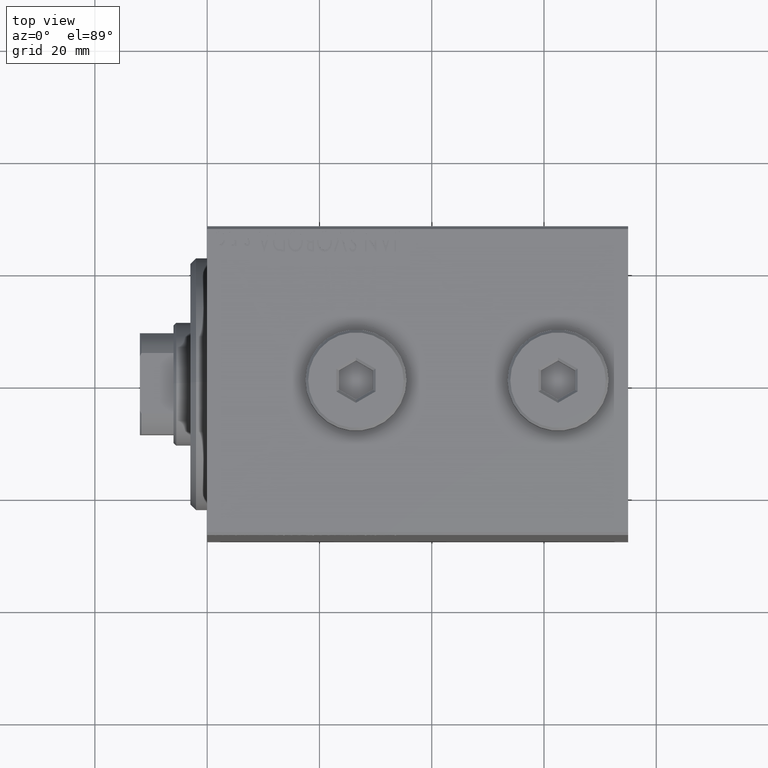
[diagram: clean part render]
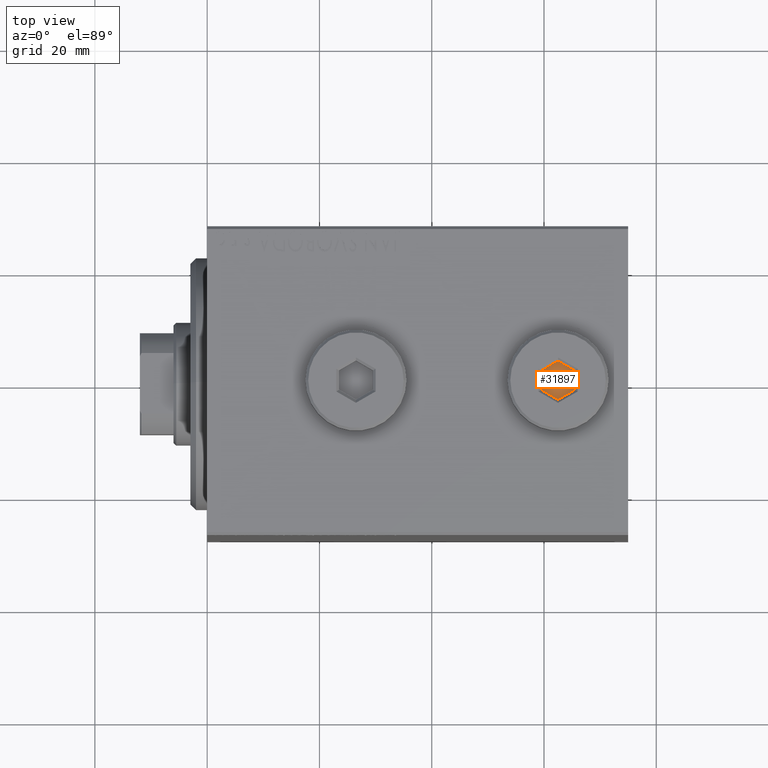
[diagram: same view with one face highlighted and labeled with its STEP entity id]
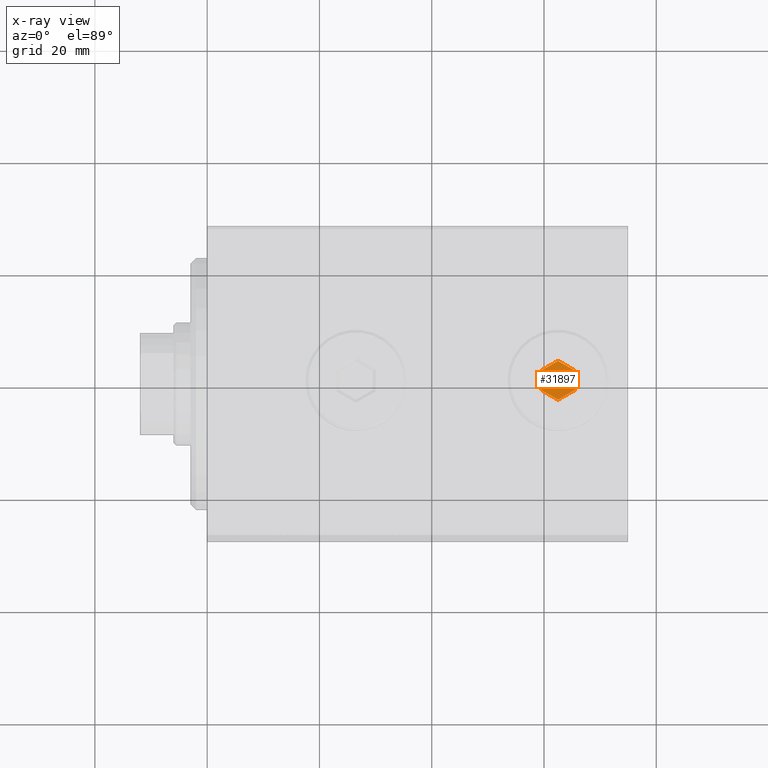
[diagram: x-ray of the same camera — body ghosted, the highlighted face saturated]
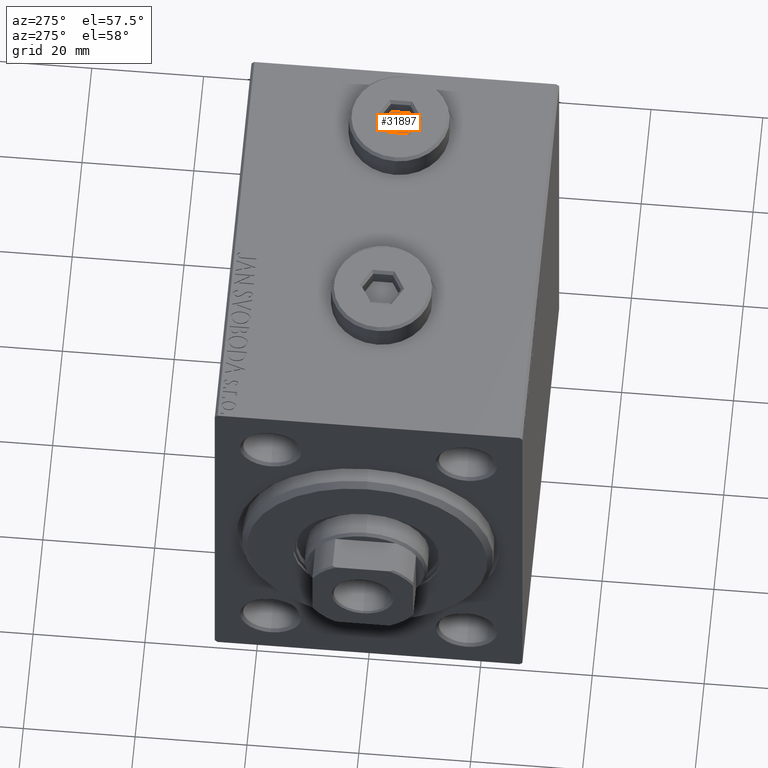
[diagram: same view with one face highlighted and labeled with its STEP entity id]
A machine part, top view. The second image highlights one B-rep face of the part: STEP entity #31897.
The next image is the same camera in x-ray: the body ghosted, the highlighted face saturated — about 0% of this face is hidden behind the body in this view.
A second angle (auxiliary view) of the same face is appended — the face is thin or edge-on in the first view.
In plain terms, the highlighted planar face has unit normal (0, 0, 1).
Its self-contained STEP definition (entity closure, byte-faithful):
#385 = LINE ( 'NONE', #24554, #24973 ) ;
#1398 = CARTESIAN_POINT ( 'NONE',  ( 3.000000000000000000, -1.732050807568878303, 2.000000000000000000 ) ) ;
#1659 = ORIENTED_EDGE ( 'NONE', *, *, #44689, .T. ) ;
#3322 = ORIENTED_EDGE ( 'NONE', *, *, #12369, .T. ) ;
#3735 = EDGE_CURVE ( 'NONE', #12724, #28302, #4068, .T. ) ;
#4068 = LINE ( 'NONE', #43003, #11755 ) ;
#4527 = DIRECTION ( 'NONE',  ( 0.000000000000000000, -1.000000000000000000, 0.000000000000000000 ) ) ;
#8658 = LINE ( 'NONE', #21769, #14334 ) ;
#9460 = VECTOR ( 'NONE', #31387, 1000.000000000000227 ) ;
#9481 = VERTEX_POINT ( 'NONE', #43325 ) ;
#11162 = CARTESIAN_POINT ( 'NONE',  ( -1.288750986297053243E-16, -3.464101615137754830, 2.000000000000000000 ) ) ;
#11749 = VECTOR ( 'NONE', #30650, 1000.000000000000000 ) ;
#11755 = VECTOR ( 'NONE', #28916, 1000.000000000000000 ) ;
#12369 = EDGE_CURVE ( 'NONE', #38424, #18230, #8658, .T. ) ;
#12724 = VERTEX_POINT ( 'NONE', #1398 ) ;
#13620 = CARTESIAN_POINT ( 'NONE',  ( 3.000000000000000000, 1.732050807568877859, 2.000000000000000000 ) ) ;
#14334 = VECTOR ( 'NONE', #4527, 1000.000000000000000 ) ;
#15980 = EDGE_LOOP ( 'NONE', ( #1659, #32531, #3322, #23654, #38936, #30790 ) ) ;
#17087 = DIRECTION ( 'NONE',  ( 0.8660254037844387076, 0.4999999999999998335, 0.000000000000000000 ) ) ;
#18119 = CARTESIAN_POINT ( 'NONE',  ( 3.000000000000000000, 1.732050807568877859, 2.000000000000000000 ) ) ;
#18177 = VERTEX_POINT ( 'NONE', #11162 ) ;
#18230 = VERTEX_POINT ( 'NONE', #25876 ) ;
#20114 = PLANE ( 'NONE',  #22795 ) ;
#21769 = CARTESIAN_POINT ( 'NONE',  ( -3.000000000000000000, 1.732050807568878081, 2.000000000000000000 ) ) ;
#22795 = AXIS2_PLACEMENT_3D ( 'NONE', #27255, #34174, #33958 ) ;
#23593 = EDGE_CURVE ( 'NONE', #18230, #18177, #45241, .T. ) ;
#23654 = ORIENTED_EDGE ( 'NONE', *, *, #23593, .T. ) ;
#24554 = CARTESIAN_POINT ( 'NONE',  ( 0.000000000000000000, 3.464101615137754386, 2.000000000000000000 ) ) ;
#24973 = VECTOR ( 'NONE', #31238, 1000.000000000000227 ) ;
#25876 = CARTESIAN_POINT ( 'NONE',  ( -3.000000000000000000, -1.732050807568877415, 2.000000000000000000 ) ) ;
#27255 = CARTESIAN_POINT ( 'NONE',  ( 0.000000000000000000, 0.000000000000000000, 2.000000000000000000 ) ) ;
#28302 = VERTEX_POINT ( 'NONE', #18119 ) ;
#28388 = CARTESIAN_POINT ( 'NONE',  ( -3.000000000000000000, -1.732050807568877415, 2.000000000000000000 ) ) ;
#28916 = DIRECTION ( 'NONE',  ( 0.000000000000000000, 1.000000000000000000, 0.000000000000000000 ) ) ;
#30650 = DIRECTION ( 'NONE',  ( -0.8660254037844387076, 0.4999999999999998335, 0.000000000000000000 ) ) ;
#30790 = ORIENTED_EDGE ( 'NONE', *, *, #3735, .T. ) ;
#31238 = DIRECTION ( 'NONE',  ( -0.8660254037844387076, -0.4999999999999997780, 0.000000000000000000 ) ) ;
#31387 = DIRECTION ( 'NONE',  ( 0.8660254037844385966, -0.4999999999999998890, 0.000000000000000000 ) ) ;
#31897 = ADVANCED_FACE ( 'NONE', ( #40888 ), #20114, .T. ) ;
#32531 = ORIENTED_EDGE ( 'NONE', *, *, #40628, .T. ) ;
#33349 = CARTESIAN_POINT ( 'NONE',  ( -3.000000000000000000, 1.732050807568878081, 2.000000000000000000 ) ) ;
#33958 = DIRECTION ( 'NONE',  ( 1.000000000000000000, 0.000000000000000000, -0.000000000000000000 ) ) ;
#34174 = DIRECTION ( 'NONE',  ( 0.000000000000000000, 0.000000000000000000, 1.000000000000000000 ) ) ;
#34597 = LINE ( 'NONE', #41750, #45182 ) ;
#38424 = VERTEX_POINT ( 'NONE', #33349 ) ;
#38936 = ORIENTED_EDGE ( 'NONE', *, *, #39215, .T. ) ;
#39215 = EDGE_CURVE ( 'NONE', #18177, #12724, #34597, .T. ) ;
#40628 = EDGE_CURVE ( 'NONE', #9481, #38424, #385, .T. ) ;
#40888 = FACE_OUTER_BOUND ( 'NONE', #15980, .T. ) ;
#41750 = CARTESIAN_POINT ( 'NONE',  ( -1.288750986297053243E-16, -3.464101615137754830, 2.000000000000000000 ) ) ;
#43003 = CARTESIAN_POINT ( 'NONE',  ( 3.000000000000000000, -1.732050807568878303, 2.000000000000000000 ) ) ;
#43325 = CARTESIAN_POINT ( 'NONE',  ( 0.000000000000000000, 3.464101615137754386, 2.000000000000000000 ) ) ;
#44689 = EDGE_CURVE ( 'NONE', #28302, #9481, #45183, .T. ) ;
#45182 = VECTOR ( 'NONE', #17087, 1000.000000000000000 ) ;
#45183 = LINE ( 'NONE', #13620, #11749 ) ;
#45241 = LINE ( 'NONE', #28388, #9460 ) ;